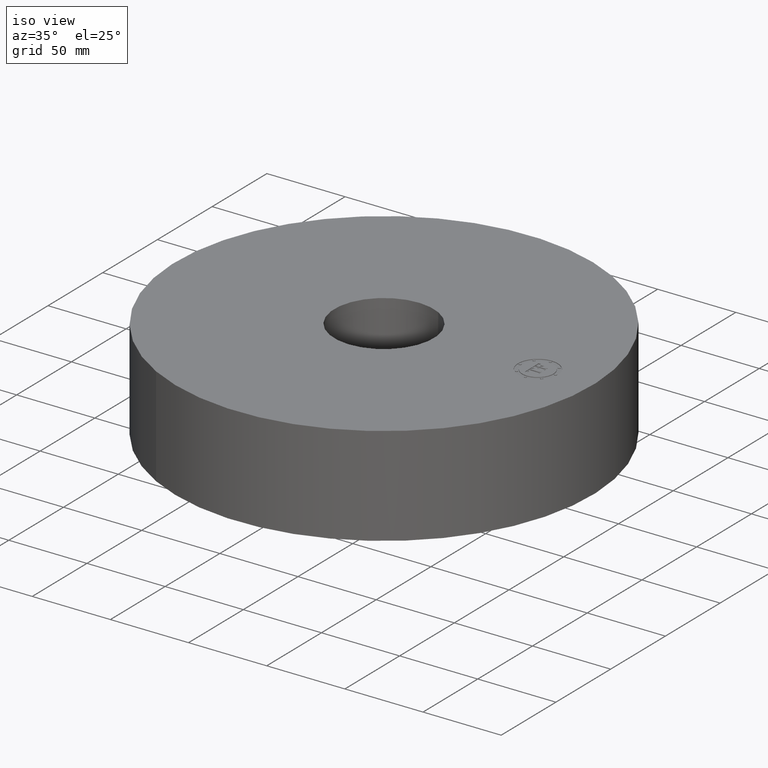
[diagram: clean part render]
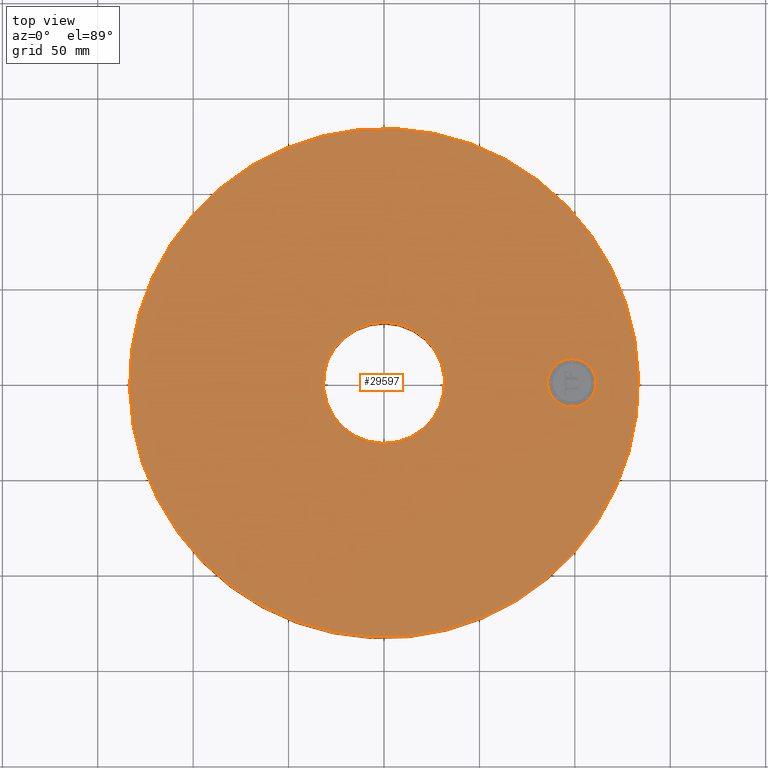
[diagram: tour spotlight — one face highlighted and labeled with its STEP entity id]
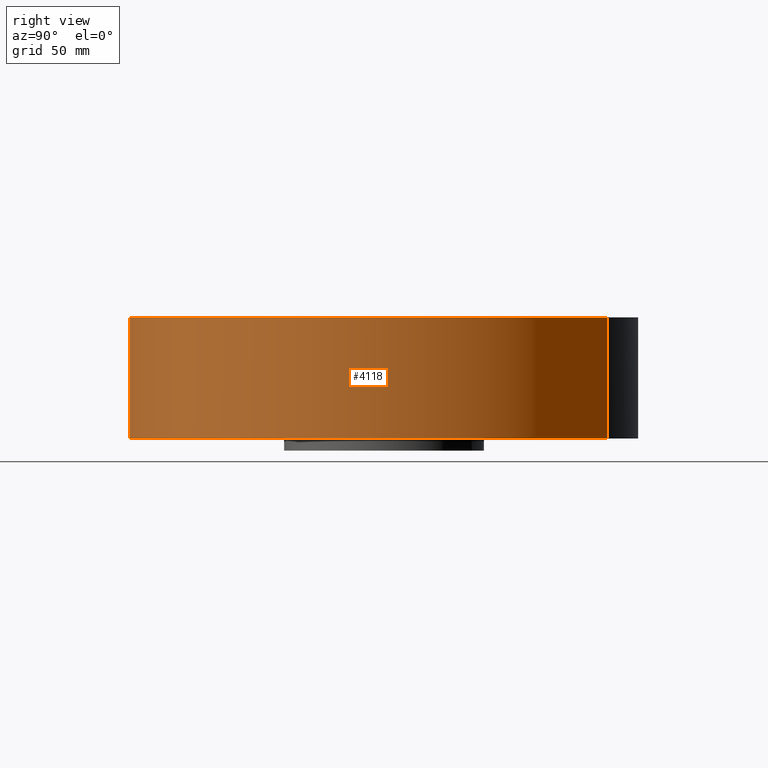
[diagram: tour spotlight — one face highlighted and labeled with its STEP entity id]
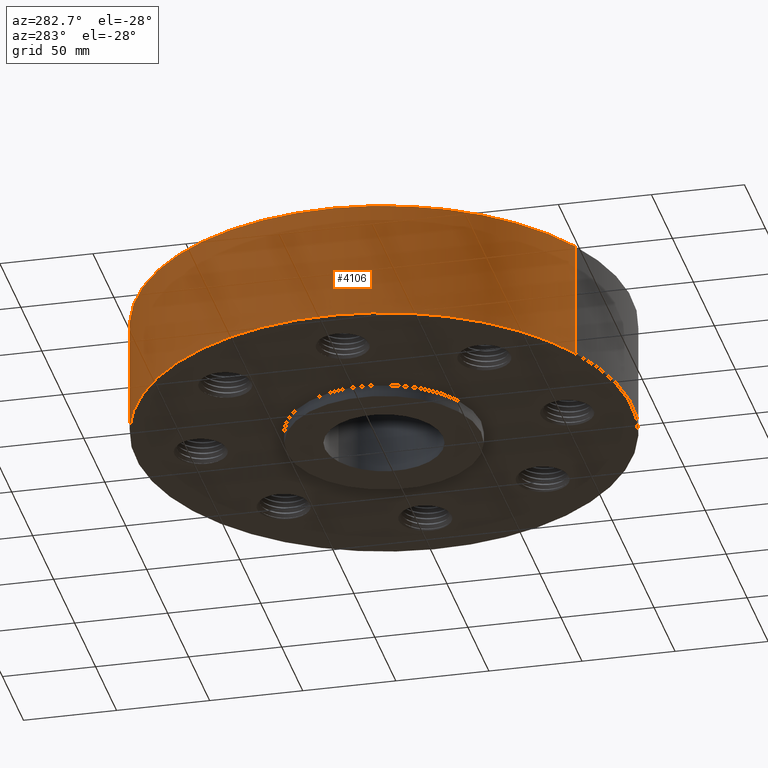
[diagram: tour spotlight — one face highlighted and labeled with its STEP entity id]
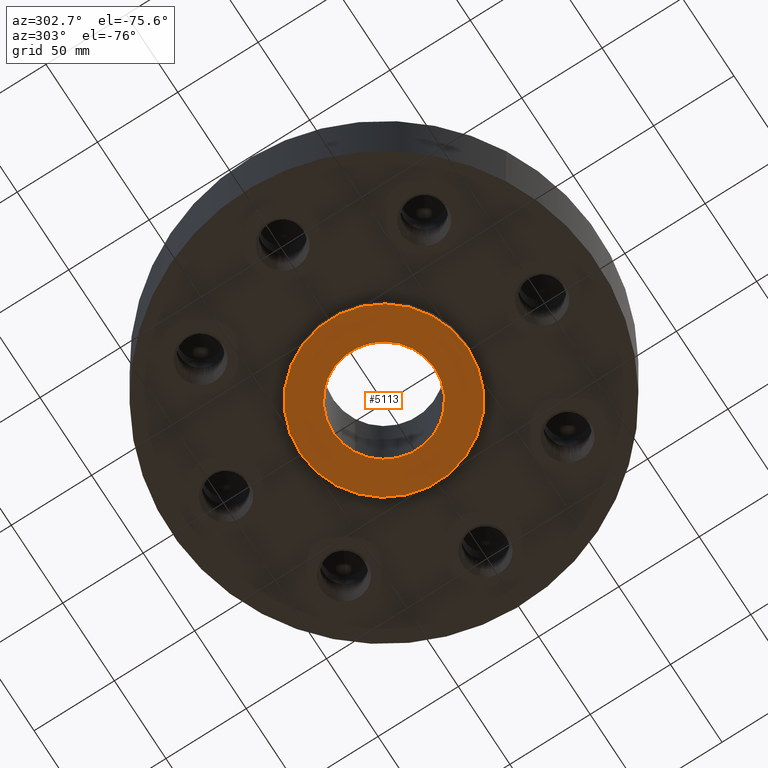
[diagram: tour spotlight — one face highlighted and labeled with its STEP entity id]
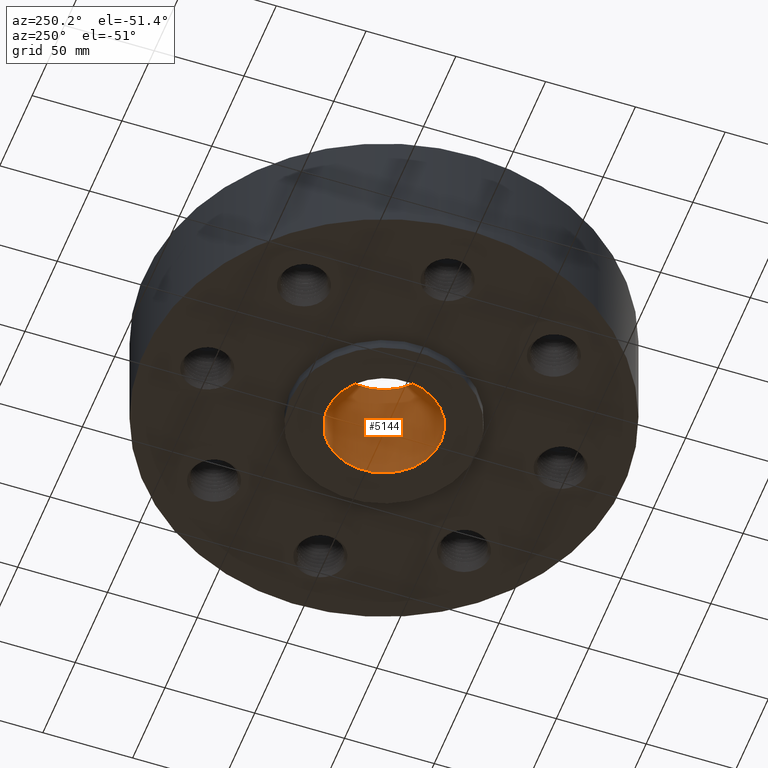
[diagram: tour spotlight — one face highlighted and labeled with its STEP entity id]
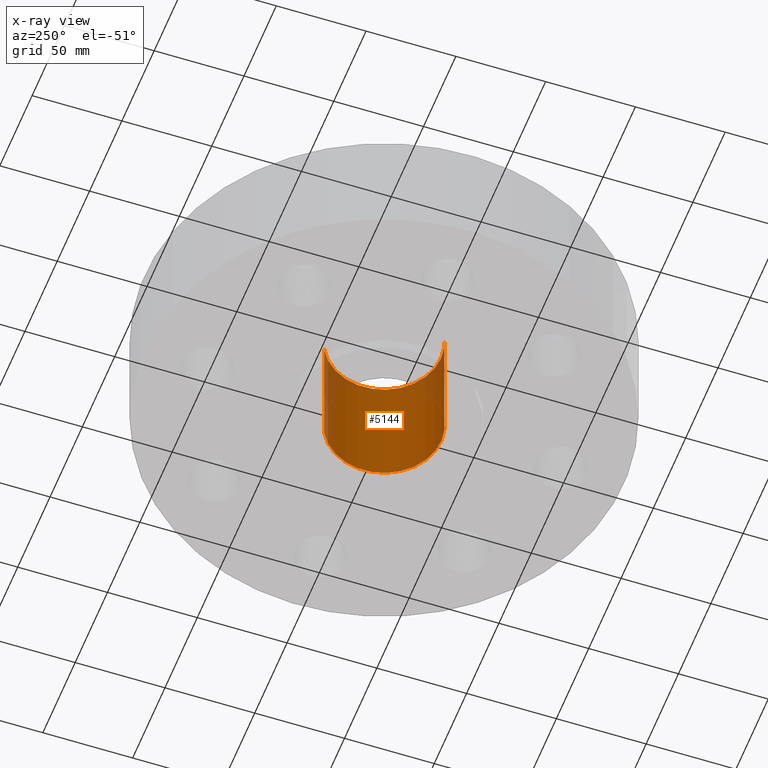
[diagram: x-ray of the same camera — body ghosted, this tour face saturated]
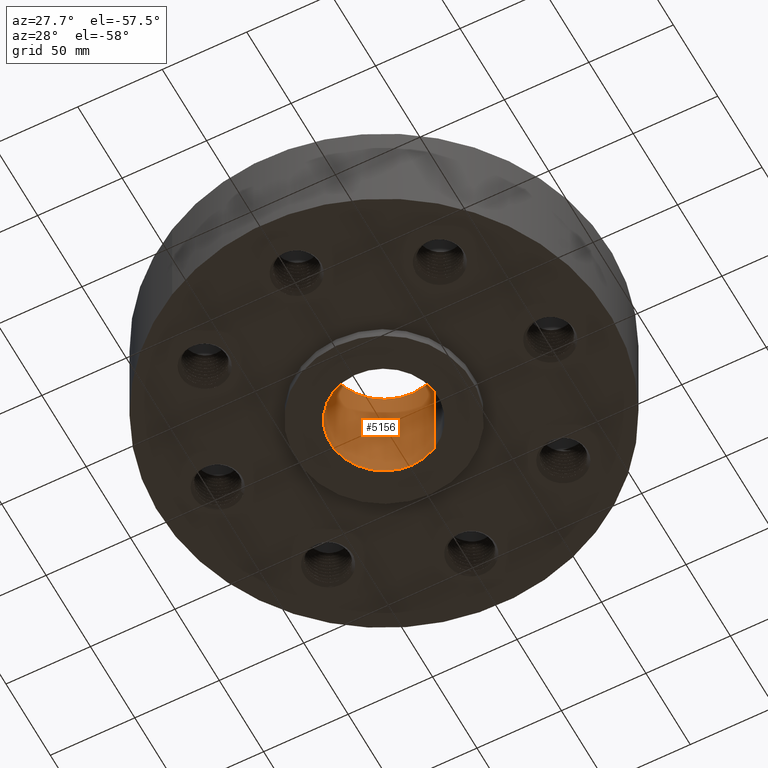
[diagram: tour spotlight — one face highlighted and labeled with its STEP entity id]
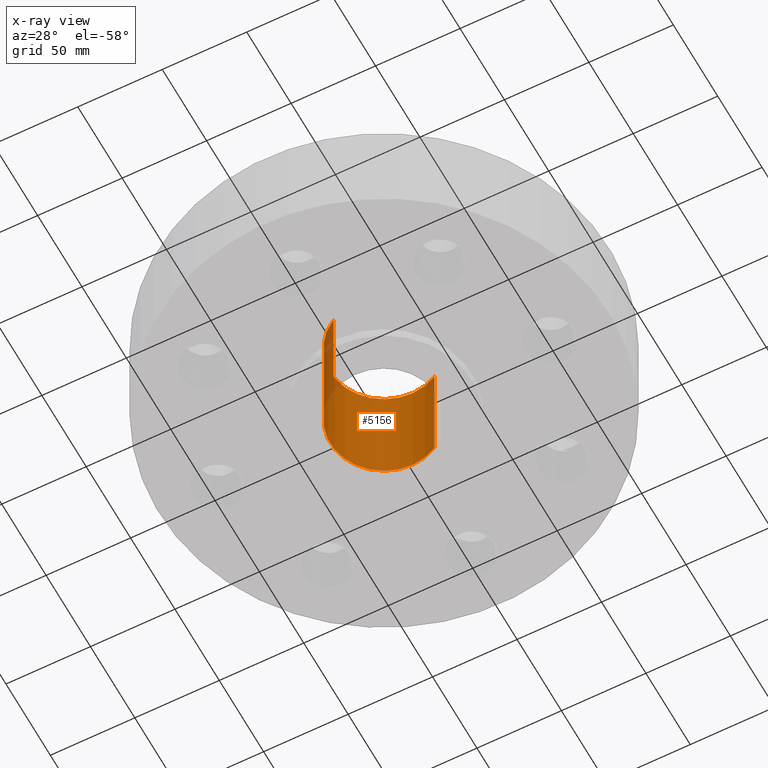
[diagram: x-ray of the same camera — body ghosted, this tour face saturated]
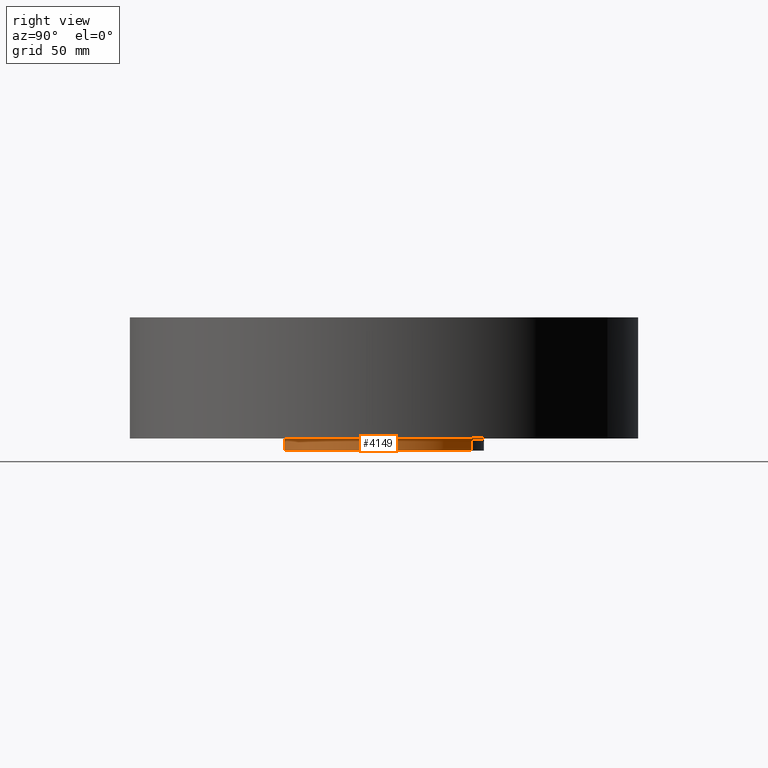
[diagram: tour spotlight — one face highlighted and labeled with its STEP entity id]
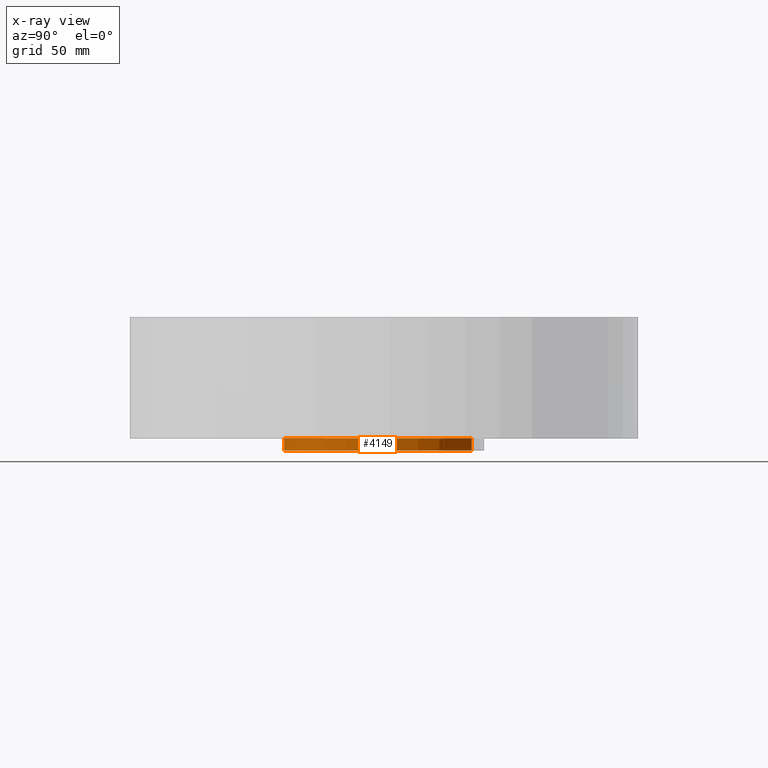
[diagram: x-ray of the same camera — body ghosted, this tour face saturated]
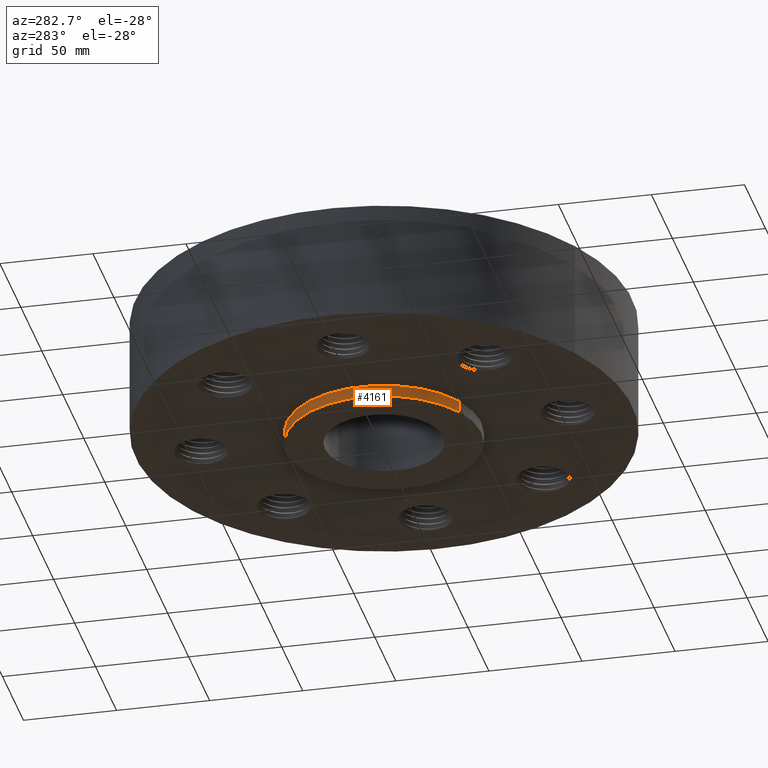
[diagram: tour spotlight — one face highlighted and labeled with its STEP entity id]
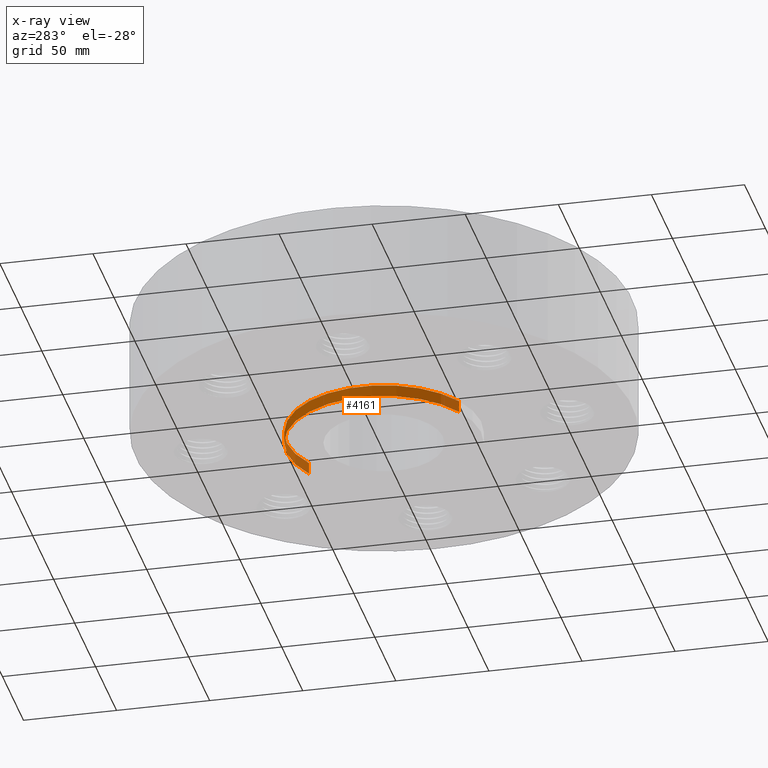
[diagram: x-ray of the same camera — body ghosted, this tour face saturated]
A machine part: a face-by-face anatomy tour. The part has 938 B-rep faces; the first image is the clean iso view, then the 8 largest visible faces are spotlighted one at a time (largest first), each with its STEP entity span.

Face 1 — top view, entity #29597. In plain terms, the highlighted planar face has unit normal (0, 0, -1).
Definition (entity closure, byte-faithful):
#4090=AXIS2_PLACEMENT_3D('Circle Axis2P3D',#4088,#4089,$) ;
#4109=AXIS2_PLACEMENT_3D('Circle Axis2P3D',#4107,#4108,$) ;
#5121=AXIS2_PLACEMENT_3D('Circle Axis2P3D',#5119,#5120,$) ;
#5147=AXIS2_PLACEMENT_3D('Circle Axis2P3D',#5145,#5146,$) ;
#29569=AXIS2_PLACEMENT_3D('Plane Axis2P3D',#29566,#29567,#29568) ;
#29581=AXIS2_PLACEMENT_3D('Circle Axis2P3D',#29579,#29580,$) ;
#29590=AXIS2_PLACEMENT_3D('Circle Axis2P3D',#29588,#29589,$) ;
#4085=CARTESIAN_POINT('Vertex',(-2.51698407768,-4.60730844994,2.50000000001)) ;
#4088=CARTESIAN_POINT('Axis2P3D Location',(0.,0.,2.50000000001)) ;
#4092=CARTESIAN_POINT('Vertex',(2.51698407768,4.60730844994,2.50000000001)) ;
#4107=CARTESIAN_POINT('Axis2P3D Location',(0.,0.,2.50000000001)) ;
#5119=CARTESIAN_POINT('Axis2P3D Location',(0.,0.,2.50000000001)) ;
#5123=CARTESIAN_POINT('Vertex',(0.599281923258,1.09697820237,2.50000000001)) ;
#5125=CARTESIAN_POINT('Vertex',(-0.599281923258,-1.09697820237,2.50000000001)) ;
#5145=CARTESIAN_POINT('Axis2P3D Location',(0.,0.,2.50000000001)) ;
#29566=CARTESIAN_POINT('Axis2P3D Location',(0.,1.25000000001,2.50000000001)) ;
#29579=CARTESIAN_POINT('Axis2P3D Location',(3.87500000002,0.,2.50000000001)) ;
#29583=CARTESIAN_POINT('Vertex',(3.87500000002,-0.499999995002,2.50000000001)) ;
#29585=CARTESIAN_POINT('Vertex',(3.87500000002,0.499999995002,2.50000000001)) ;
#29588=CARTESIAN_POINT('Axis2P3D Location',(3.87500000002,0.,2.50000000001)) ;
#4089=DIRECTION('Axis2P3D Direction',(0.,0.,-0.0393700787402)) ;
#4108=DIRECTION('Axis2P3D Direction',(0.,0.,-0.0393700787402)) ;
#5120=DIRECTION('Axis2P3D Direction',(0.,0.,-0.0393700787402)) ;
#5146=DIRECTION('Axis2P3D Direction',(0.,0.,-0.0393700787402)) ;
#29567=DIRECTION('Axis2P3D Direction',(0.,0.,-0.0393700787402)) ;
#29568=DIRECTION('Axis2P3D XDirection',(0.0393700787402,0.,0.)) ;
#29580=DIRECTION('Axis2P3D Direction',(0.,0.,-0.0393700787402)) ;
#29589=DIRECTION('Axis2P3D Direction',(0.,0.,-0.0393700787402)) ;
#29572=ORIENTED_EDGE('',*,*,#4111,.F.) ;
#29573=ORIENTED_EDGE('',*,*,#4094,.F.) ;
#29576=ORIENTED_EDGE('',*,*,#5149,.T.) ;
#29577=ORIENTED_EDGE('',*,*,#5127,.T.) ;
#29594=ORIENTED_EDGE('',*,*,#29587,.F.) ;
#29595=ORIENTED_EDGE('',*,*,#29592,.F.) ;
#29578=FACE_BOUND('',#29575,.T.) ;
#29596=FACE_BOUND('',#29593,.T.) ;
#29597=ADVANCED_FACE('PartBody',(#29574,#29578,#29596),#29570,.F.) ;
#4091=CIRCLE('generated circle',#4090,5.25000000002) ;
#4110=CIRCLE('generated circle',#4109,5.25000000002) ;
#5122=CIRCLE('generated circle',#5121,1.25000000001) ;
#5148=CIRCLE('generated circle',#5147,1.25000000001) ;
#29582=CIRCLE('generated circle',#29581,0.499999995002) ;
#29591=CIRCLE('generated circle',#29590,0.499999995002) ;
#4094=EDGE_CURVE('',#4086,#4093,#4091,.T.) ;
#4111=EDGE_CURVE('',#4093,#4086,#4110,.T.) ;
#5127=EDGE_CURVE('',#5124,#5126,#5122,.T.) ;
#5149=EDGE_CURVE('',#5126,#5124,#5148,.T.) ;
#29587=EDGE_CURVE('',#29584,#29586,#29582,.F.) ;
#29592=EDGE_CURVE('',#29586,#29584,#29591,.F.) ;
#29571=EDGE_LOOP('',(#29572,#29573)) ;
#29575=EDGE_LOOP('',(#29576,#29577)) ;
#29593=EDGE_LOOP('',(#29594,#29595)) ;
#29574=FACE_OUTER_BOUND('',#29571,.T.) ;
#29570=PLANE('',#29569) ;
#4086=VERTEX_POINT('',#4085) ;
#4093=VERTEX_POINT('',#4092) ;
#5124=VERTEX_POINT('',#5123) ;
#5126=VERTEX_POINT('',#5125) ;
#29584=VERTEX_POINT('',#29583) ;
#29586=VERTEX_POINT('',#29585) ;

Face 2 — right view, entity #4118. In plain terms, the highlighted cylindrical surface (partial cylindrical patch) has radius 133.35 mm, axis along (0, 0, -1).
Definition (entity closure, byte-faithful):
#3707=AXIS2_PLACEMENT_3D('Circle Axis2P3D',#3705,#3706,$) ;
#4079=AXIS2_PLACEMENT_3D('Cylinder Axis2P3D',#4076,#4077,#4078) ;
#4109=AXIS2_PLACEMENT_3D('Circle Axis2P3D',#4107,#4108,$) ;
#3700=CARTESIAN_POINT('Vertex',(-2.51698407768,-4.60730844994,-3.86042903681E-014)) ;
#3702=CARTESIAN_POINT('Vertex',(2.51698407768,4.60730844994,-3.86042903681E-014)) ;
#3705=CARTESIAN_POINT('Axis2P3D Location',(0.,0.,0.)) ;
#4076=CARTESIAN_POINT('Axis2P3D Location',(0.,0.,1.125)) ;
#4081=CARTESIAN_POINT('Line Origine',(-2.51698407768,-4.60730844994,1.25)) ;
#4085=CARTESIAN_POINT('Vertex',(-2.51698407768,-4.60730844994,2.50000000001)) ;
#4092=CARTESIAN_POINT('Vertex',(2.51698407768,4.60730844994,2.50000000001)) ;
#4095=CARTESIAN_POINT('Line Origine',(2.51698407768,4.60730844994,1.25)) ;
#4107=CARTESIAN_POINT('Axis2P3D Location',(0.,0.,2.50000000001)) ;
#3706=DIRECTION('Axis2P3D Direction',(0.,0.,-0.0393700787402)) ;
#4077=DIRECTION('Axis2P3D Direction',(0.,0.,-0.0393700787402)) ;
#4078=DIRECTION('Axis2P3D XDirection',(0.0188750212049,0.0345504945626,0.)) ;
#4082=DIRECTION('Vector Direction',(0.,0.,-0.0393700787402)) ;
#4096=DIRECTION('Vector Direction',(0.,0.,-0.0393700787402)) ;
#4108=DIRECTION('Axis2P3D Direction',(0.,0.,-0.0393700787402)) ;
#4083=VECTOR('Line Direction',#4082,0.0393700787402) ;
#4097=VECTOR('Line Direction',#4096,0.0393700787402) ;
#4113=ORIENTED_EDGE('',*,*,#3709,.F.) ;
#4114=ORIENTED_EDGE('',*,*,#4099,.T.) ;
#4115=ORIENTED_EDGE('',*,*,#4111,.T.) ;
#4116=ORIENTED_EDGE('',*,*,#4087,.F.) ;
#4118=ADVANCED_FACE('PartBody',(#4117),#4080,.T.) ;
#3708=CIRCLE('generated circle',#3707,5.25000000002) ;
#4110=CIRCLE('generated circle',#4109,5.25000000002) ;
#4080=CYLINDRICAL_SURFACE('generated cylinder',#4079,5.25000000002) ;
#3709=EDGE_CURVE('',#3703,#3701,#3708,.T.) ;
#4087=EDGE_CURVE('',#3701,#4086,#4084,.F.) ;
#4099=EDGE_CURVE('',#3703,#4093,#4098,.F.) ;
#4111=EDGE_CURVE('',#4093,#4086,#4110,.T.) ;
#4112=EDGE_LOOP('',(#4113,#4114,#4115,#4116)) ;
#4117=FACE_OUTER_BOUND('',#4112,.T.) ;
#4084=LINE('Line',#4081,#4083) ;
#4098=LINE('Line',#4095,#4097) ;
#3701=VERTEX_POINT('',#3700) ;
#3703=VERTEX_POINT('',#3702) ;
#4086=VERTEX_POINT('',#4085) ;
#4093=VERTEX_POINT('',#4092) ;

Face 3 — auxiliary view, entity #4106. In plain terms, the highlighted cylindrical surface (partial cylindrical patch) has radius 133.35 mm, axis along (0, 0, -1).
Definition (entity closure, byte-faithful):
#3698=AXIS2_PLACEMENT_3D('Circle Axis2P3D',#3696,#3697,$) ;
#4079=AXIS2_PLACEMENT_3D('Cylinder Axis2P3D',#4076,#4077,#4078) ;
#4090=AXIS2_PLACEMENT_3D('Circle Axis2P3D',#4088,#4089,$) ;
#3696=CARTESIAN_POINT('Axis2P3D Location',(0.,0.,0.)) ;
#3700=CARTESIAN_POINT('Vertex',(-2.51698407768,-4.60730844994,-3.86042903681E-014)) ;
#3702=CARTESIAN_POINT('Vertex',(2.51698407768,4.60730844994,-3.86042903681E-014)) ;
#4076=CARTESIAN_POINT('Axis2P3D Location',(0.,0.,1.125)) ;
#4081=CARTESIAN_POINT('Line Origine',(-2.51698407768,-4.60730844994,1.25)) ;
#4085=CARTESIAN_POINT('Vertex',(-2.51698407768,-4.60730844994,2.50000000001)) ;
#4088=CARTESIAN_POINT('Axis2P3D Location',(0.,0.,2.50000000001)) ;
#4092=CARTESIAN_POINT('Vertex',(2.51698407768,4.60730844994,2.50000000001)) ;
#4095=CARTESIAN_POINT('Line Origine',(2.51698407768,4.60730844994,1.25)) ;
#3697=DIRECTION('Axis2P3D Direction',(0.,0.,-0.0393700787402)) ;
#4077=DIRECTION('Axis2P3D Direction',(0.,0.,-0.0393700787402)) ;
#4078=DIRECTION('Axis2P3D XDirection',(0.0188750212049,0.0345504945626,0.)) ;
#4082=DIRECTION('Vector Direction',(0.,0.,-0.0393700787402)) ;
#4089=DIRECTION('Axis2P3D Direction',(0.,0.,-0.0393700787402)) ;
#4096=DIRECTION('Vector Direction',(0.,0.,-0.0393700787402)) ;
#4083=VECTOR('Line Direction',#4082,0.0393700787402) ;
#4097=VECTOR('Line Direction',#4096,0.0393700787402) ;
#4101=ORIENTED_EDGE('',*,*,#3704,.F.) ;
#4102=ORIENTED_EDGE('',*,*,#4087,.T.) ;
#4103=ORIENTED_EDGE('',*,*,#4094,.T.) ;
#4104=ORIENTED_EDGE('',*,*,#4099,.F.) ;
#4106=ADVANCED_FACE('PartBody',(#4105),#4080,.T.) ;
#3699=CIRCLE('generated circle',#3698,5.25000000002) ;
#4091=CIRCLE('generated circle',#4090,5.25000000002) ;
#4080=CYLINDRICAL_SURFACE('generated cylinder',#4079,5.25000000002) ;
#3704=EDGE_CURVE('',#3701,#3703,#3699,.T.) ;
#4087=EDGE_CURVE('',#3701,#4086,#4084,.F.) ;
#4094=EDGE_CURVE('',#4086,#4093,#4091,.T.) ;
#4099=EDGE_CURVE('',#3703,#4093,#4098,.F.) ;
#4100=EDGE_LOOP('',(#4101,#4102,#4103,#4104)) ;
#4105=FACE_OUTER_BOUND('',#4100,.T.) ;
#4084=LINE('Line',#4081,#4083) ;
#4098=LINE('Line',#4095,#4097) ;
#3701=VERTEX_POINT('',#3700) ;
#3703=VERTEX_POINT('',#3702) ;
#4086=VERTEX_POINT('',#4085) ;
#4093=VERTEX_POINT('',#4092) ;

Face 4 — auxiliary view, entity #5113. In plain terms, the highlighted planar face has unit normal (0, 0, -1).
Definition (entity closure, byte-faithful):
#4126=AXIS2_PLACEMENT_3D('Circle Axis2P3D',#4124,#4125,$) ;
#4152=AXIS2_PLACEMENT_3D('Circle Axis2P3D',#4150,#4151,$) ;
#5089=AXIS2_PLACEMENT_3D('Plane Axis2P3D',#5086,#5087,#5088) ;
#5097=AXIS2_PLACEMENT_3D('Circle Axis2P3D',#5095,#5096,$) ;
#5106=AXIS2_PLACEMENT_3D('Circle Axis2P3D',#5104,#5105,$) ;
#4124=CARTESIAN_POINT('Axis2P3D Location',(0.,0.,-0.250000000001)) ;
#4128=CARTESIAN_POINT('Vertex',(0.987616609529,1.8078200775,-0.250000000001)) ;
#4130=CARTESIAN_POINT('Vertex',(-0.987616609529,-1.8078200775,-0.250000000001)) ;
#4150=CARTESIAN_POINT('Axis2P3D Location',(0.,0.,-0.250000000001)) ;
#5086=CARTESIAN_POINT('Axis2P3D Location',(0.,2.06000000001,-0.250000000001)) ;
#5095=CARTESIAN_POINT('Axis2P3D Location',(0.,0.,-0.250000000001)) ;
#5099=CARTESIAN_POINT('Vertex',(0.599281923258,1.09697820237,-0.250000000001)) ;
#5101=CARTESIAN_POINT('Vertex',(-0.599281923258,-1.09697820237,-0.250000000001)) ;
#5104=CARTESIAN_POINT('Axis2P3D Location',(0.,0.,-0.250000000001)) ;
#4125=DIRECTION('Axis2P3D Direction',(0.,0.,-0.0393700787402)) ;
#4151=DIRECTION('Axis2P3D Direction',(0.,0.,-0.0393700787402)) ;
#5087=DIRECTION('Axis2P3D Direction',(0.,0.,-0.0393700787402)) ;
#5088=DIRECTION('Axis2P3D XDirection',(0.0393700787402,0.,0.)) ;
#5096=DIRECTION('Axis2P3D Direction',(0.,0.,-0.0393700787402)) ;
#5105=DIRECTION('Axis2P3D Direction',(0.,0.,-0.0393700787402)) ;
#5092=ORIENTED_EDGE('',*,*,#4154,.T.) ;
#5093=ORIENTED_EDGE('',*,*,#4132,.T.) ;
#5110=ORIENTED_EDGE('',*,*,#5103,.F.) ;
#5111=ORIENTED_EDGE('',*,*,#5108,.F.) ;
#5112=FACE_BOUND('',#5109,.T.) ;
#5113=ADVANCED_FACE('PartBody',(#5094,#5112),#5090,.T.) ;
#4127=CIRCLE('generated circle',#4126,2.06000000001) ;
#4153=CIRCLE('generated circle',#4152,2.06000000001) ;
#5098=CIRCLE('generated circle',#5097,1.25000000001) ;
#5107=CIRCLE('generated circle',#5106,1.25000000001) ;
#4132=EDGE_CURVE('',#4129,#4131,#4127,.T.) ;
#4154=EDGE_CURVE('',#4131,#4129,#4153,.T.) ;
#5103=EDGE_CURVE('',#5100,#5102,#5098,.T.) ;
#5108=EDGE_CURVE('',#5102,#5100,#5107,.T.) ;
#5091=EDGE_LOOP('',(#5092,#5093)) ;
#5109=EDGE_LOOP('',(#5110,#5111)) ;
#5094=FACE_OUTER_BOUND('',#5091,.T.) ;
#5090=PLANE('',#5089) ;
#4129=VERTEX_POINT('',#4128) ;
#4131=VERTEX_POINT('',#4130) ;
#5100=VERTEX_POINT('',#5099) ;
#5102=VERTEX_POINT('',#5101) ;

Face 5 — auxiliary view, entity #5144. An x-ray twin of the same camera follows (body ghosted, this face saturated) — the face is partly hidden behind the body. In plain terms, the highlighted cylindrical surface (partial cylindrical patch) has radius 31.75 mm, axis along (0, 0, -1).
Definition (entity closure, byte-faithful):
#5097=AXIS2_PLACEMENT_3D('Circle Axis2P3D',#5095,#5096,$) ;
#5117=AXIS2_PLACEMENT_3D('Cylinder Axis2P3D',#5114,#5115,#5116) ;
#5121=AXIS2_PLACEMENT_3D('Circle Axis2P3D',#5119,#5120,$) ;
#5095=CARTESIAN_POINT('Axis2P3D Location',(0.,0.,-0.250000000001)) ;
#5099=CARTESIAN_POINT('Vertex',(0.599281923258,1.09697820237,-0.250000000001)) ;
#5101=CARTESIAN_POINT('Vertex',(-0.599281923258,-1.09697820237,-0.250000000001)) ;
#5114=CARTESIAN_POINT('Axis2P3D Location',(0.,0.,1.125)) ;
#5119=CARTESIAN_POINT('Axis2P3D Location',(0.,0.,2.50000000001)) ;
#5123=CARTESIAN_POINT('Vertex',(0.599281923258,1.09697820237,2.50000000001)) ;
#5125=CARTESIAN_POINT('Vertex',(-0.599281923258,-1.09697820237,2.50000000001)) ;
#5128=CARTESIAN_POINT('Line Origine',(0.599281923258,1.09697820237,1.125)) ;
#5133=CARTESIAN_POINT('Line Origine',(-0.599281923258,-1.09697820237,1.125)) ;
#5096=DIRECTION('Axis2P3D Direction',(0.,0.,-0.0393700787402)) ;
#5115=DIRECTION('Axis2P3D Direction',(0.,0.,-0.0393700787402)) ;
#5116=DIRECTION('Axis2P3D XDirection',(-0.0188750212049,-0.0345504945626,0.)) ;
#5120=DIRECTION('Axis2P3D Direction',(0.,0.,-0.0393700787402)) ;
#5129=DIRECTION('Vector Direction',(0.,0.,-0.0393700787402)) ;
#5134=DIRECTION('Vector Direction',(0.,0.,-0.0393700787402)) ;
#5130=VECTOR('Line Direction',#5129,0.0393700787402) ;
#5135=VECTOR('Line Direction',#5134,0.0393700787402) ;
#5139=ORIENTED_EDGE('',*,*,#5127,.F.) ;
#5140=ORIENTED_EDGE('',*,*,#5132,.T.) ;
#5141=ORIENTED_EDGE('',*,*,#5103,.T.) ;
#5142=ORIENTED_EDGE('',*,*,#5137,.F.) ;
#5144=ADVANCED_FACE('PartBody',(#5143),#5118,.F.) ;
#5098=CIRCLE('generated circle',#5097,1.25000000001) ;
#5122=CIRCLE('generated circle',#5121,1.25000000001) ;
#5118=CYLINDRICAL_SURFACE('generated cylinder',#5117,1.25000000001) ;
#5103=EDGE_CURVE('',#5100,#5102,#5098,.T.) ;
#5127=EDGE_CURVE('',#5124,#5126,#5122,.T.) ;
#5132=EDGE_CURVE('',#5124,#5100,#5131,.T.) ;
#5137=EDGE_CURVE('',#5126,#5102,#5136,.T.) ;
#5138=EDGE_LOOP('',(#5139,#5140,#5141,#5142)) ;
#5143=FACE_OUTER_BOUND('',#5138,.T.) ;
#5131=LINE('Line',#5128,#5130) ;
#5136=LINE('Line',#5133,#5135) ;
#5100=VERTEX_POINT('',#5099) ;
#5102=VERTEX_POINT('',#5101) ;
#5124=VERTEX_POINT('',#5123) ;
#5126=VERTEX_POINT('',#5125) ;

Face 6 — auxiliary view, entity #5156. An x-ray twin of the same camera follows (body ghosted, this face saturated) — the face is partly hidden behind the body. In plain terms, the highlighted cylindrical surface (partial cylindrical patch) has radius 31.75 mm, axis along (0, 0, -1).
Definition (entity closure, byte-faithful):
#5106=AXIS2_PLACEMENT_3D('Circle Axis2P3D',#5104,#5105,$) ;
#5117=AXIS2_PLACEMENT_3D('Cylinder Axis2P3D',#5114,#5115,#5116) ;
#5147=AXIS2_PLACEMENT_3D('Circle Axis2P3D',#5145,#5146,$) ;
#5099=CARTESIAN_POINT('Vertex',(0.599281923258,1.09697820237,-0.250000000001)) ;
#5101=CARTESIAN_POINT('Vertex',(-0.599281923258,-1.09697820237,-0.250000000001)) ;
#5104=CARTESIAN_POINT('Axis2P3D Location',(0.,0.,-0.250000000001)) ;
#5114=CARTESIAN_POINT('Axis2P3D Location',(0.,0.,1.125)) ;
#5123=CARTESIAN_POINT('Vertex',(0.599281923258,1.09697820237,2.50000000001)) ;
#5125=CARTESIAN_POINT('Vertex',(-0.599281923258,-1.09697820237,2.50000000001)) ;
#5128=CARTESIAN_POINT('Line Origine',(0.599281923258,1.09697820237,1.125)) ;
#5133=CARTESIAN_POINT('Line Origine',(-0.599281923258,-1.09697820237,1.125)) ;
#5145=CARTESIAN_POINT('Axis2P3D Location',(0.,0.,2.50000000001)) ;
#5105=DIRECTION('Axis2P3D Direction',(0.,0.,-0.0393700787402)) ;
#5115=DIRECTION('Axis2P3D Direction',(0.,0.,-0.0393700787402)) ;
#5116=DIRECTION('Axis2P3D XDirection',(-0.0188750212049,-0.0345504945626,0.)) ;
#5129=DIRECTION('Vector Direction',(0.,0.,-0.0393700787402)) ;
#5134=DIRECTION('Vector Direction',(0.,0.,-0.0393700787402)) ;
#5146=DIRECTION('Axis2P3D Direction',(0.,0.,-0.0393700787402)) ;
#5130=VECTOR('Line Direction',#5129,0.0393700787402) ;
#5135=VECTOR('Line Direction',#5134,0.0393700787402) ;
#5151=ORIENTED_EDGE('',*,*,#5149,.F.) ;
#5152=ORIENTED_EDGE('',*,*,#5137,.T.) ;
#5153=ORIENTED_EDGE('',*,*,#5108,.T.) ;
#5154=ORIENTED_EDGE('',*,*,#5132,.F.) ;
#5156=ADVANCED_FACE('PartBody',(#5155),#5118,.F.) ;
#5107=CIRCLE('generated circle',#5106,1.25000000001) ;
#5148=CIRCLE('generated circle',#5147,1.25000000001) ;
#5118=CYLINDRICAL_SURFACE('generated cylinder',#5117,1.25000000001) ;
#5108=EDGE_CURVE('',#5102,#5100,#5107,.T.) ;
#5132=EDGE_CURVE('',#5124,#5100,#5131,.T.) ;
#5137=EDGE_CURVE('',#5126,#5102,#5136,.T.) ;
#5149=EDGE_CURVE('',#5126,#5124,#5148,.T.) ;
#5150=EDGE_LOOP('',(#5151,#5152,#5153,#5154)) ;
#5155=FACE_OUTER_BOUND('',#5150,.T.) ;
#5131=LINE('Line',#5128,#5130) ;
#5136=LINE('Line',#5133,#5135) ;
#5100=VERTEX_POINT('',#5099) ;
#5102=VERTEX_POINT('',#5101) ;
#5124=VERTEX_POINT('',#5123) ;
#5126=VERTEX_POINT('',#5125) ;

Face 7 — right view, entity #4149. An x-ray twin of the same camera follows (body ghosted, this face saturated) — the face is partly hidden behind the body. In plain terms, the highlighted cylindrical surface (partial cylindrical patch) has radius 52.324 mm, axis along (0, 0, -1).
Definition (entity closure, byte-faithful):
#3723=AXIS2_PLACEMENT_3D('Circle Axis2P3D',#3721,#3722,$) ;
#4122=AXIS2_PLACEMENT_3D('Cylinder Axis2P3D',#4119,#4120,#4121) ;
#4126=AXIS2_PLACEMENT_3D('Circle Axis2P3D',#4124,#4125,$) ;
#3721=CARTESIAN_POINT('Axis2P3D Location',(0.,0.,0.)) ;
#3725=CARTESIAN_POINT('Vertex',(0.987616609529,1.8078200775,-2.82538646897E-014)) ;
#3727=CARTESIAN_POINT('Vertex',(-0.987616609529,-1.8078200775,-2.82538646897E-014)) ;
#4119=CARTESIAN_POINT('Axis2P3D Location',(0.,0.,1.125)) ;
#4124=CARTESIAN_POINT('Axis2P3D Location',(0.,0.,-0.250000000001)) ;
#4128=CARTESIAN_POINT('Vertex',(0.987616609529,1.8078200775,-0.250000000001)) ;
#4130=CARTESIAN_POINT('Vertex',(-0.987616609529,-1.8078200775,-0.250000000001)) ;
#4133=CARTESIAN_POINT('Line Origine',(0.987616609529,1.8078200775,-0.125000000001)) ;
#4138=CARTESIAN_POINT('Line Origine',(-0.987616609529,-1.8078200775,-0.125000000001)) ;
#3722=DIRECTION('Axis2P3D Direction',(0.,0.,-0.0393700787402)) ;
#4120=DIRECTION('Axis2P3D Direction',(0.,0.,-0.0393700787402)) ;
#4121=DIRECTION('Axis2P3D XDirection',(-0.0188750212049,-0.0345504945626,0.)) ;
#4125=DIRECTION('Axis2P3D Direction',(0.,0.,-0.0393700787402)) ;
#4134=DIRECTION('Vector Direction',(0.,0.,-0.0393700787402)) ;
#4139=DIRECTION('Vector Direction',(0.,0.,-0.0393700787402)) ;
#4135=VECTOR('Line Direction',#4134,0.0393700787402) ;
#4140=VECTOR('Line Direction',#4139,0.0393700787402) ;
#4144=ORIENTED_EDGE('',*,*,#4132,.F.) ;
#4145=ORIENTED_EDGE('',*,*,#4137,.T.) ;
#4146=ORIENTED_EDGE('',*,*,#3729,.T.) ;
#4147=ORIENTED_EDGE('',*,*,#4142,.F.) ;
#4149=ADVANCED_FACE('PartBody',(#4148),#4123,.T.) ;
#3724=CIRCLE('generated circle',#3723,2.06000000001) ;
#4127=CIRCLE('generated circle',#4126,2.06000000001) ;
#4123=CYLINDRICAL_SURFACE('generated cylinder',#4122,2.06000000001) ;
#3729=EDGE_CURVE('',#3726,#3728,#3724,.T.) ;
#4132=EDGE_CURVE('',#4129,#4131,#4127,.T.) ;
#4137=EDGE_CURVE('',#4129,#3726,#4136,.F.) ;
#4142=EDGE_CURVE('',#4131,#3728,#4141,.F.) ;
#4143=EDGE_LOOP('',(#4144,#4145,#4146,#4147)) ;
#4148=FACE_OUTER_BOUND('',#4143,.T.) ;
#4136=LINE('Line',#4133,#4135) ;
#4141=LINE('Line',#4138,#4140) ;
#3726=VERTEX_POINT('',#3725) ;
#3728=VERTEX_POINT('',#3727) ;
#4129=VERTEX_POINT('',#4128) ;
#4131=VERTEX_POINT('',#4130) ;

Face 8 — auxiliary view, entity #4161. An x-ray twin of the same camera follows (body ghosted, this face saturated) — the face is partly hidden behind the body. In plain terms, the highlighted cylindrical surface (partial cylindrical patch) has radius 52.324 mm, axis along (0, 0, -1).
Definition (entity closure, byte-faithful):
#3732=AXIS2_PLACEMENT_3D('Circle Axis2P3D',#3730,#3731,$) ;
#4122=AXIS2_PLACEMENT_3D('Cylinder Axis2P3D',#4119,#4120,#4121) ;
#4152=AXIS2_PLACEMENT_3D('Circle Axis2P3D',#4150,#4151,$) ;
#3725=CARTESIAN_POINT('Vertex',(0.987616609529,1.8078200775,-2.82538646897E-014)) ;
#3727=CARTESIAN_POINT('Vertex',(-0.987616609529,-1.8078200775,-2.82538646897E-014)) ;
#3730=CARTESIAN_POINT('Axis2P3D Location',(0.,0.,0.)) ;
#4119=CARTESIAN_POINT('Axis2P3D Location',(0.,0.,1.125)) ;
#4128=CARTESIAN_POINT('Vertex',(0.987616609529,1.8078200775,-0.250000000001)) ;
#4130=CARTESIAN_POINT('Vertex',(-0.987616609529,-1.8078200775,-0.250000000001)) ;
#4133=CARTESIAN_POINT('Line Origine',(0.987616609529,1.8078200775,-0.125000000001)) ;
#4138=CARTESIAN_POINT('Line Origine',(-0.987616609529,-1.8078200775,-0.125000000001)) ;
#4150=CARTESIAN_POINT('Axis2P3D Location',(0.,0.,-0.250000000001)) ;
#3731=DIRECTION('Axis2P3D Direction',(0.,0.,-0.0393700787402)) ;
#4120=DIRECTION('Axis2P3D Direction',(0.,0.,-0.0393700787402)) ;
#4121=DIRECTION('Axis2P3D XDirection',(-0.0188750212049,-0.0345504945626,0.)) ;
#4134=DIRECTION('Vector Direction',(0.,0.,-0.0393700787402)) ;
#4139=DIRECTION('Vector Direction',(0.,0.,-0.0393700787402)) ;
#4151=DIRECTION('Axis2P3D Direction',(0.,0.,-0.0393700787402)) ;
#4135=VECTOR('Line Direction',#4134,0.0393700787402) ;
#4140=VECTOR('Line Direction',#4139,0.0393700787402) ;
#4156=ORIENTED_EDGE('',*,*,#4154,.F.) ;
#4157=ORIENTED_EDGE('',*,*,#4142,.T.) ;
#4158=ORIENTED_EDGE('',*,*,#3734,.T.) ;
#4159=ORIENTED_EDGE('',*,*,#4137,.F.) ;
#4161=ADVANCED_FACE('PartBody',(#4160),#4123,.T.) ;
#3733=CIRCLE('generated circle',#3732,2.06000000001) ;
#4153=CIRCLE('generated circle',#4152,2.06000000001) ;
#4123=CYLINDRICAL_SURFACE('generated cylinder',#4122,2.06000000001) ;
#3734=EDGE_CURVE('',#3728,#3726,#3733,.T.) ;
#4137=EDGE_CURVE('',#4129,#3726,#4136,.F.) ;
#4142=EDGE_CURVE('',#4131,#3728,#4141,.F.) ;
#4154=EDGE_CURVE('',#4131,#4129,#4153,.T.) ;
#4155=EDGE_LOOP('',(#4156,#4157,#4158,#4159)) ;
#4160=FACE_OUTER_BOUND('',#4155,.T.) ;
#4136=LINE('Line',#4133,#4135) ;
#4141=LINE('Line',#4138,#4140) ;
#3726=VERTEX_POINT('',#3725) ;
#3728=VERTEX_POINT('',#3727) ;
#4129=VERTEX_POINT('',#4128) ;
#4131=VERTEX_POINT('',#4130) ;